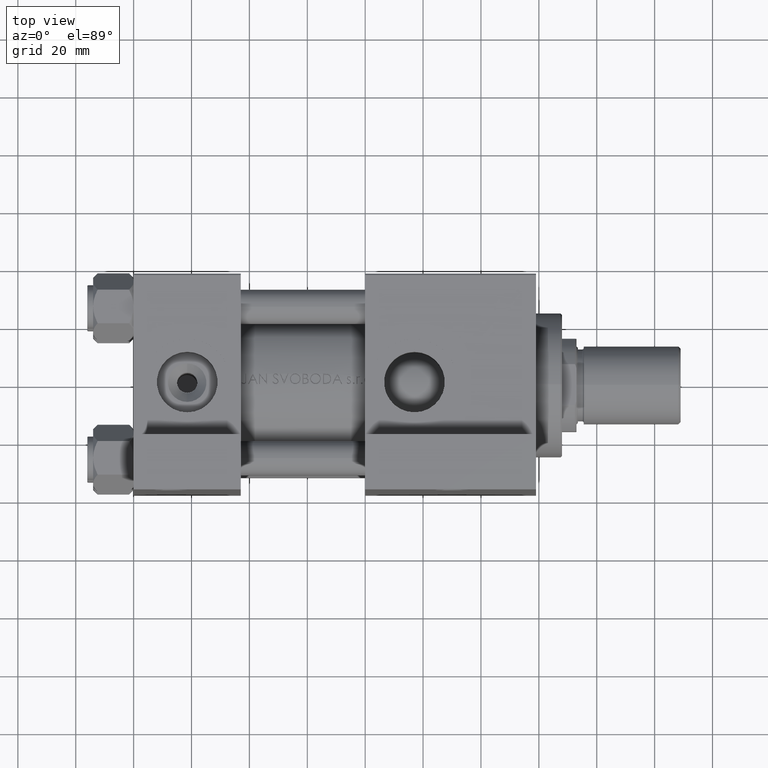
[diagram: clean part render]
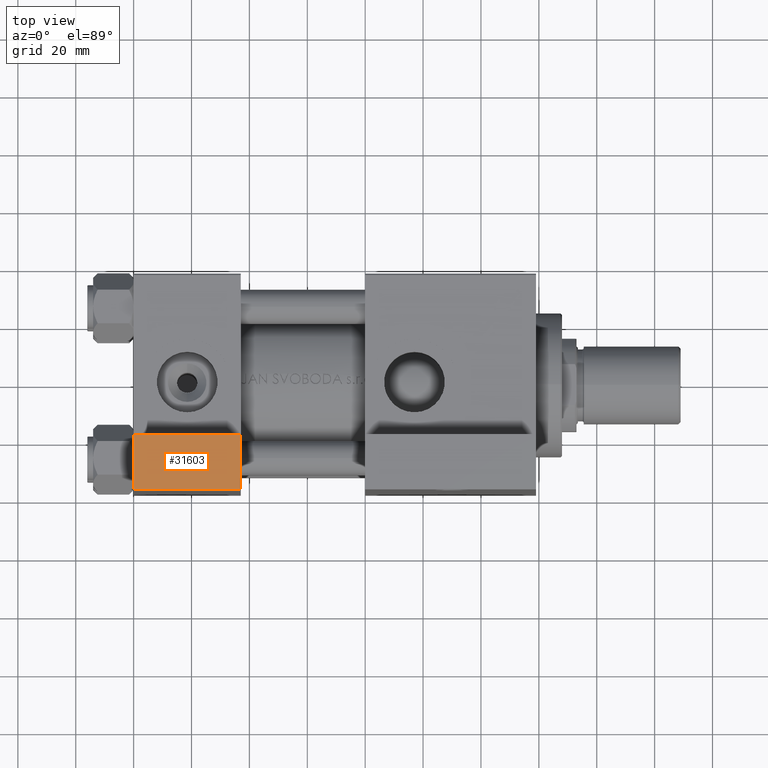
[diagram: same view with one face highlighted and labeled with its STEP entity id]
A machine part, top view. The second image highlights one B-rep face of the part: STEP entity #31603.
In plain terms, the highlighted planar face has unit normal (0, 0, 1).
Its self-contained STEP definition (entity closure, byte-faithful):
#261 = EDGE_CURVE ( 'NONE', #38585, #37639, #42190, .T. ) ;
#3021 = DIRECTION ( 'NONE',  ( 0.000000000000000000, -1.734723475976806848E-16, -1.000000000000000000 ) ) ;
#3778 = CARTESIAN_POINT ( 'NONE',  ( 3.977209754999747208E-16, -63.49999999999998579, 26.72167621838007889 ) ) ;
#4681 = DIRECTION ( 'NONE',  ( 0.000000000000000000, -1.734723475976806848E-16, -1.000000000000000000 ) ) ;
#6833 = EDGE_CURVE ( 'NONE', #26230, #10545, #41772, .T. ) ;
#7237 = PLANE ( 'NONE',  #41062 ) ;
#8379 = ORIENTED_EDGE ( 'NONE', *, *, #9434, .F. ) ;
#9159 = CARTESIAN_POINT ( 'NONE',  ( 37.00000000000000000, -63.50000000000000000, -18.50000000000000355 ) ) ;
#9434 = EDGE_CURVE ( 'NONE', #37639, #10545, #19962, .T. ) ;
#10239 = FACE_OUTER_BOUND ( 'NONE', #48173, .T. ) ;
#10480 = DIRECTION ( 'NONE',  ( 0.000000000000000000, -1.000000000000000000, 1.734723475976806848E-16 ) ) ;
#10545 = VERTEX_POINT ( 'NONE', #23510 ) ;
#10864 = VECTOR ( 'NONE', #13495, 1000.000000000000000 ) ;
#11535 = DIRECTION ( 'NONE',  ( -1.000000000000000000, -0.000000000000000000, -0.000000000000000000 ) ) ;
#13495 = DIRECTION ( 'NONE',  ( 1.000000000000000000, 0.000000000000000000, 0.000000000000000000 ) ) ;
#15493 = ORIENTED_EDGE ( 'NONE', *, *, #6833, .T. ) ;
#19799 = ORIENTED_EDGE ( 'NONE', *, *, #29080, .F. ) ;
#19962 = LINE ( 'NONE', #46320, #35910 ) ;
#21686 = LINE ( 'NONE', #47037, #10864 ) ;
#22824 = CARTESIAN_POINT ( 'NONE',  ( 37.00000000000000000, -63.49999999999998579, 26.72167621838007889 ) ) ;
#23510 = CARTESIAN_POINT ( 'NONE',  ( 3.977209754999747208E-16, -63.50000000000000000, -37.49999999999999289 ) ) ;
#26230 = VERTEX_POINT ( 'NONE', #35943 ) ;
#28542 = ORIENTED_EDGE ( 'NONE', *, *, #261, .F. ) ;
#28696 = DIRECTION ( 'NONE',  ( 0.000000000000000000, -1.734723475976806848E-16, -1.000000000000000000 ) ) ;
#28835 = VECTOR ( 'NONE', #28696, 1000.000000000000000 ) ;
#29021 = CARTESIAN_POINT ( 'NONE',  ( 37.00000000000000000, -63.50000000000000000, -37.49999999999999289 ) ) ;
#29080 = EDGE_CURVE ( 'NONE', #26230, #38585, #21686, .T. ) ;
#31603 = ADVANCED_FACE ( 'NONE', ( #10239 ), #7237, .T. ) ;
#35910 = VECTOR ( 'NONE', #11535, 1000.000000000000000 ) ;
#35943 = CARTESIAN_POINT ( 'NONE',  ( 3.977209754999747208E-16, -63.50000000000000000, -18.50000000000000355 ) ) ;
#37041 = CARTESIAN_POINT ( 'NONE',  ( 3.977209754999747208E-16, -63.49999999999998579, 26.72167621838007889 ) ) ;
#37639 = VERTEX_POINT ( 'NONE', #29021 ) ;
#38585 = VERTEX_POINT ( 'NONE', #9159 ) ;
#41062 = AXIS2_PLACEMENT_3D ( 'NONE', #37041, #10480, #3021 ) ;
#41772 = LINE ( 'NONE', #3778, #28835 ) ;
#42190 = LINE ( 'NONE', #22824, #43713 ) ;
#43713 = VECTOR ( 'NONE', #4681, 1000.000000000000000 ) ;
#46320 = CARTESIAN_POINT ( 'NONE',  ( 3.977209754999747208E-16, -63.50000000000000000, -37.49999999999999289 ) ) ;
#47037 = CARTESIAN_POINT ( 'NONE',  ( 3.977209754999747208E-16, -63.50000000000000000, -18.50000000000000355 ) ) ;
#48173 = EDGE_LOOP ( 'NONE', ( #19799, #15493, #8379, #28542 ) ) ;